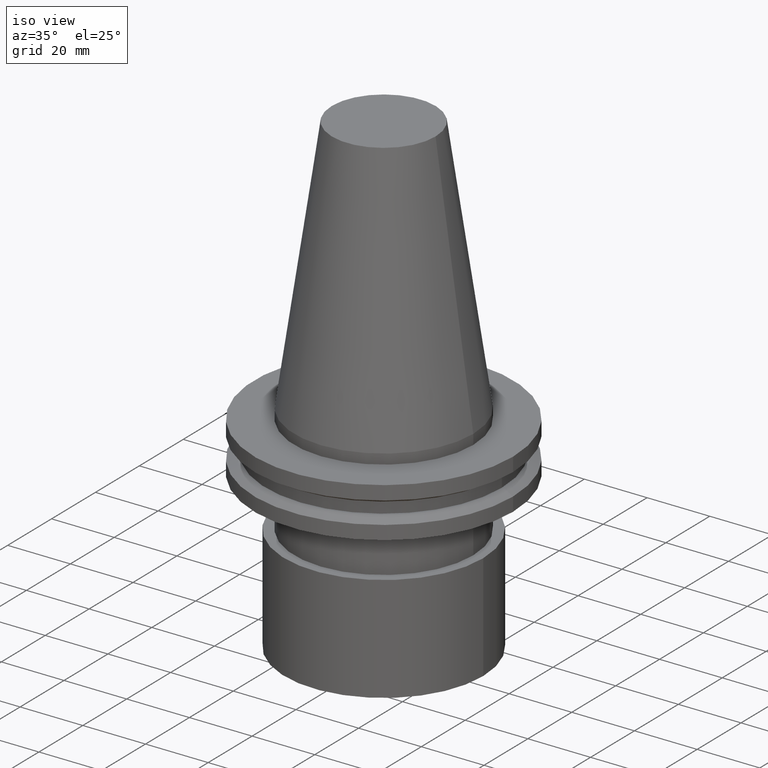
[diagram: clean part render]
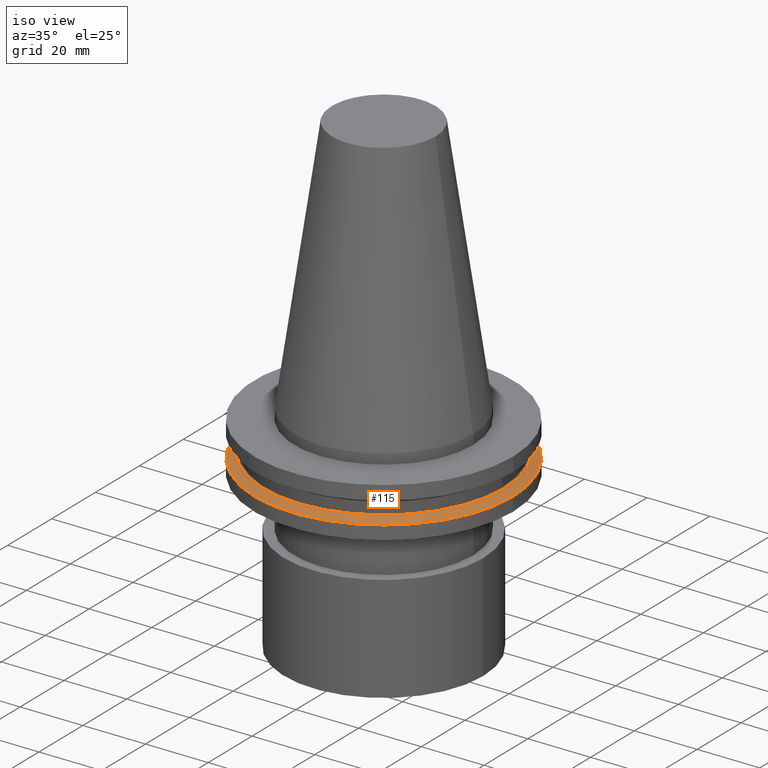
[diagram: same view with one face highlighted and labeled with its STEP entity id]
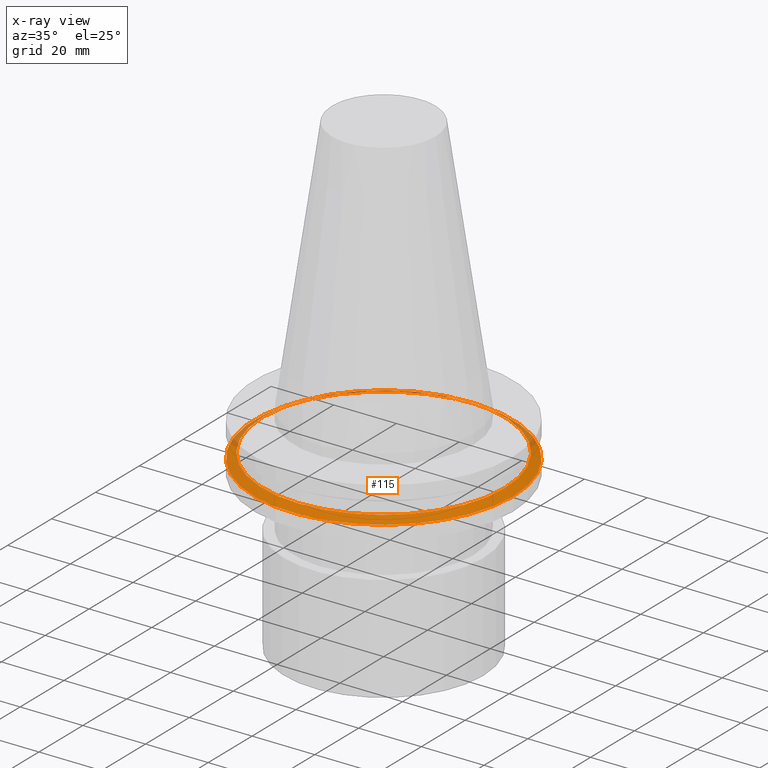
[diagram: x-ray of the same camera — body ghosted, the highlighted face saturated]
A machine part, iso view. The second image highlights one B-rep face of the part: STEP entity #115.
The next image is the same camera in x-ray: the body ghosted, the highlighted face saturated — about 12% of this face is hidden behind the body in this view.
In plain terms, the highlighted conical surface has half-angle 60 deg.
Its self-contained STEP definition (entity closure, byte-faithful):
#17 = CIRCLE ( 'NONE', #269, 38.50419780457011854 ) ;
#19 = DIRECTION ( 'NONE',  ( 1.000000000000000000, 0.000000000000000000, 0.000000000000000000 ) ) ;
#52 = CARTESIAN_POINT ( 'NONE',  ( 0.000000000000000000, 0.000000000000000000, -14.65472339340269414 ) ) ;
#101 = AXIS2_PLACEMENT_3D ( 'NONE', #52, #138, #19 ) ;
#115 = ADVANCED_FACE ( 'NONE', ( #265, #354 ), #198, .T. ) ;
#119 = VERTEX_POINT ( 'NONE', #296 ) ;
#138 = DIRECTION ( 'NONE',  ( -0.000000000000000000, -0.000000000000000000, 1.000000000000000000 ) ) ;
#198 = CONICAL_SURFACE ( 'NONE', #345, 41.27500000000000568, 1.047197551196589860 ) ;
#200 = CARTESIAN_POINT ( 'NONE',  ( 38.50419780457011854, 0.000000000000000000, -13.05500000000001037 ) ) ;
#216 = EDGE_CURVE ( 'NONE', #353, #353, #17, .T. ) ;
#225 = ORIENTED_EDGE ( 'NONE', *, *, #262, .T. ) ;
#227 = EDGE_LOOP ( 'NONE', ( #290 ) ) ;
#246 = CARTESIAN_POINT ( 'NONE',  ( 0.000000000000000000, 0.000000000000000000, -13.05500000000001037 ) ) ;
#262 = EDGE_CURVE ( 'NONE', #119, #119, #310, .T. ) ;
#265 = FACE_BOUND ( 'NONE', #227, .T. ) ;
#267 = DIRECTION ( 'NONE',  ( 0.000000000000000000, 0.000000000000000000, -1.000000000000000000 ) ) ;
#269 = AXIS2_PLACEMENT_3D ( 'NONE', #246, #369, #365 ) ;
#290 = ORIENTED_EDGE ( 'NONE', *, *, #216, .F. ) ;
#296 = CARTESIAN_POINT ( 'NONE',  ( 41.27500000000000568, 0.000000000000000000, -14.65472339340269414 ) ) ;
#310 = CIRCLE ( 'NONE', #101, 41.27500000000000568 ) ;
#327 = CARTESIAN_POINT ( 'NONE',  ( 0.000000000000000000, 0.000000000000000000, -14.65472339340269414 ) ) ;
#344 = EDGE_LOOP ( 'NONE', ( #225 ) ) ;
#345 = AXIS2_PLACEMENT_3D ( 'NONE', #327, #267, #389 ) ;
#353 = VERTEX_POINT ( 'NONE', #200 ) ;
#354 = FACE_OUTER_BOUND ( 'NONE', #344, .T. ) ;
#365 = DIRECTION ( 'NONE',  ( 1.000000000000000000, 0.000000000000000000, 0.000000000000000000 ) ) ;
#369 = DIRECTION ( 'NONE',  ( -0.000000000000000000, -0.000000000000000000, 1.000000000000000000 ) ) ;
#389 = DIRECTION ( 'NONE',  ( -1.000000000000000000, 0.000000000000000000, 0.000000000000000000 ) ) ;